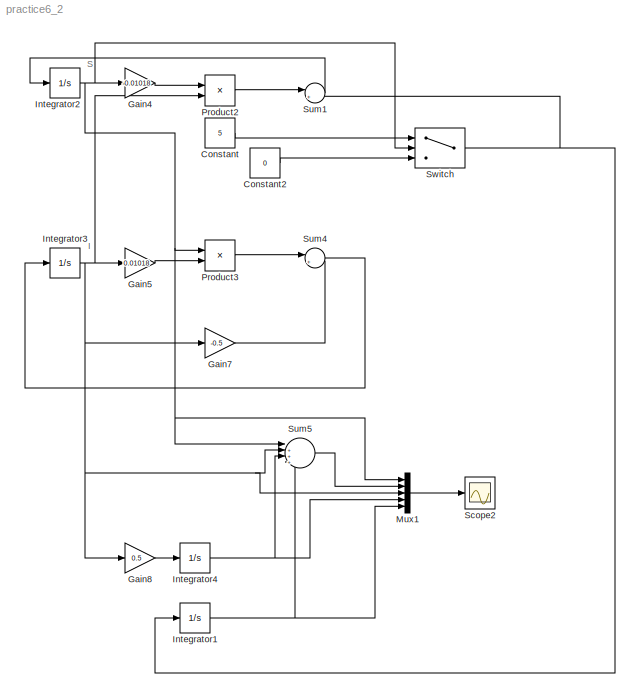
MODEL practice6_2
KIND model
BLOCK [Constant] Constant
  SID = 23
  Value = 5
BLOCK [Constant] Constant2
  SID = 25
  Value = 0
BLOCK [Gain] Gain4
  Gain = -0.01018
  OutDataTypeStr = Inherit: Inherit via internal rule
  ParamDataTypeStr = Inherit: Inherit via internal rule
  SID = 1
  SaturateOnIntegerOverflow = off
BLOCK [Gain] Gain5
  Gain = 0.01018
  OutDataTypeStr = Inherit: Inherit via internal rule
  ParamDataTypeStr = Inherit: Inherit via internal rule
  SID = 2
  SaturateOnIntegerOverflow = off
BLOCK [Gain] Gain7
  Gain = -0.5
  OutDataTypeStr = Inherit: Inherit via internal rule
  ParamDataTypeStr = Inherit: Inherit via internal rule
  SID = 3
  SaturateOnIntegerOverflow = off
BLOCK [Gain] Gain8
  Gain = 0.5
  OutDataTypeStr = Inherit: Inherit via internal rule
  ParamDataTypeStr = Inherit: Inherit via internal rule
  SID = 4
  SaturateOnIntegerOverflow = off
BLOCK [Integrator] Integrator1
  Ports = [1, 1]
  SID = 19
BLOCK [Integrator] Integrator2
  InitialCondition = 99
  Ports = [1, 1]
  SID = 5
BLOCK [Integrator] Integrator3
  InitialCondition = 1
  Ports = [1, 1]
  SID = 6
BLOCK [Integrator] Integrator4
  Ports = [1, 1]
  SID = 7
BLOCK [Mux] Mux1
  DisplayOption = bar
  Inputs = 5
  Ports = [5, 1]
  SID = 8
BLOCK [Product] Product2
  InputSameDT = off
  OutDataTypeStr = Inherit: Inherit via internal rule
  Ports = [2, 1]
  SID = 9
  SaturateOnIntegerOverflow = off
BLOCK [Product] Product3
  InputSameDT = off
  OutDataTypeStr = Inherit: Inherit via internal rule
  Ports = [2, 1]
  SID = 10
  SaturateOnIntegerOverflow = off
BLOCK [Scope] Scope2
  DataFormat = StructureWithTime
  Floating = off
  NumInputPorts = 1
  Ports = [1]
  SID = 11
  SampleTime = 0
  SaveToWorkspace = on
  ShowLegends = off
  TimeRange = 10
BLOCK [Sum] Sum1
  IconShape = round
  InputSameDT = off
  Inputs = |+-
  OutDataTypeStr = Inherit: Inherit via internal rule
  Ports = [2, 1]
  SID = 26
  SaturateOnIntegerOverflow = off
BLOCK [Sum] Sum4
  IconShape = round
  InputSameDT = off
  Inputs = |++
  OutDataTypeStr = Inherit: Inherit via internal rule
  Ports = [2, 1]
  SID = 12
  SaturateOnIntegerOverflow = off
BLOCK [Sum] Sum5
  IconShape = round
  InputSameDT = off
  Inputs = |++++
  OutDataTypeStr = Inherit: Inherit via internal rule
  Ports = [4, 1]
  SID = 13
  SaturateOnIntegerOverflow = off
BLOCK [Switch] Switch
  InputSameDT = off
  SID = 24
  SaturateOnIntegerOverflow = off
ANNOTATION (root): I
ANNOTATION (root): S
LINE Constant2:1 -> Switch:3
LINE Constant:1 -> Switch:1
LINE Gain4:1 -> Product2:1
LINE Gain5:1 -> Product3:2
LINE Gain7:1 -> Sum4:2
LINE Gain8:1 -> Integrator4:1
NET Integrator1:1 -> Mux1:5, Sum5:4
NET Integrator2:1 -> Gain4:1, Mux1:1, Product3:1, Sum5:1, Switch:2
NET Integrator3:1 -> Gain5:1, Gain7:1, Gain8:1, Mux1:3, Product2:2, Sum5:2
NET Integrator4:1 -> Mux1:4, Sum5:3
LINE Mux1:1 -> Scope2:1
LINE Product2:1 -> Sum1:1
LINE Product3:1 -> Sum4:1
LINE Sum1:1 -> Integrator2:1
LINE Sum4:1 -> Integrator3:1
LINE Sum5:1 -> Mux1:2
NET Switch:1 -> Integrator1:1, Sum1:2
note: NET lines group one-source signal fan-out (src -> all destinations, sorted); 1:1 wires keep LINE
